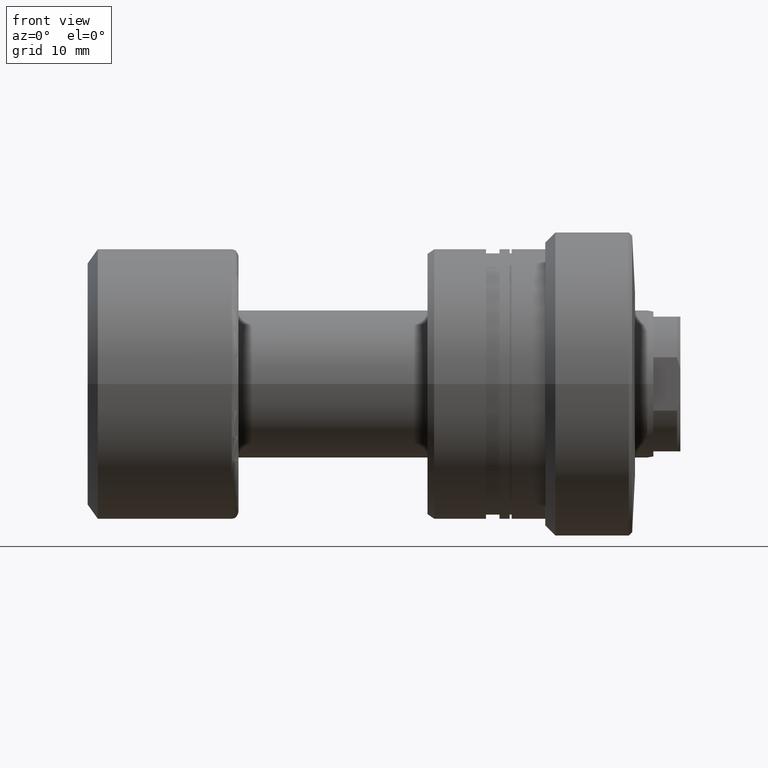
[diagram: clean part render]
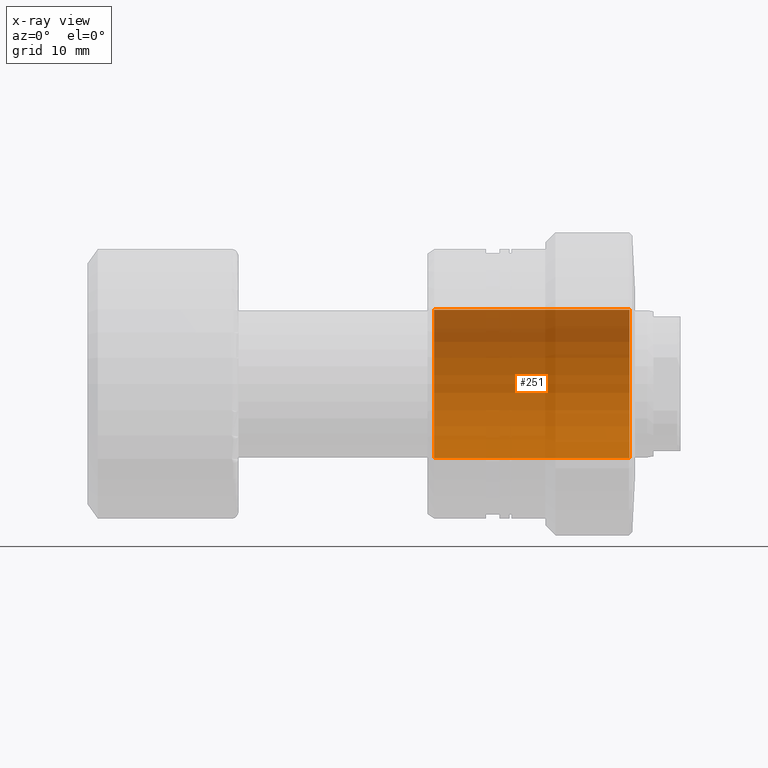
[diagram: x-ray — body ghosted, one internal face saturated and labeled with its STEP entity id]
A machine part, front view, then the same camera in x-ray: the body is ghosted and one INTERNAL B-rep face — a face not visible from any outside direction — is saturated and labeled: STEP entity #251.
In plain terms, the highlighted cylindrical surface (partial cylindrical patch) has radius 11 mm, axis along (1, 0, 0).
Its self-contained STEP definition (entity closure, byte-faithful):
#43 = ORIENTED_EDGE ( 'NONE', *, *, #934, .F. ) ;
#78 = DIRECTION ( 'NONE',  ( 0.000000000000000000, 0.000000000000000000, -1.000000000000000000 ) ) ;
#149 = VECTOR ( 'NONE', #687, 1000.000000000000000 ) ;
#251 = ADVANCED_FACE ( 'NONE', ( #2238 ), #1305, .F. ) ;
#270 = CARTESIAN_POINT ( 'NONE',  ( -1.500000000000000000, 0.000000000000000000, 0.000000000000000000 ) ) ;
#331 = CARTESIAN_POINT ( 'NONE',  ( -1.500000000000000000, 0.000000000000000000, -11.00000000000000000 ) ) ;
#368 = CARTESIAN_POINT ( 'NONE',  ( -62.61269837220812207, 1.347111479062088405E-15, 11.00000000000000000 ) ) ;
#381 = ORIENTED_EDGE ( 'NONE', *, *, #1438, .T. ) ;
#449 = VERTEX_POINT ( 'NONE', #1748 ) ;
#571 = EDGE_CURVE ( 'NONE', #1424, #612, #2145, .T. ) ;
#612 = VERTEX_POINT ( 'NONE', #331 ) ;
#687 = DIRECTION ( 'NONE',  ( 1.000000000000000000, -0.000000000000000000, -0.000000000000000000 ) ) ;
#714 = CARTESIAN_POINT ( 'NONE',  ( -30.50000000000002132, 0.000000000000000000, 0.000000000000000000 ) ) ;
#934 = EDGE_CURVE ( 'NONE', #2177, #449, #2054, .T. ) ;
#1028 = AXIS2_PLACEMENT_3D ( 'NONE', #714, #1253, #2024 ) ;
#1123 = DIRECTION ( 'NONE',  ( 1.000000000000000000, -0.000000000000000000, -0.000000000000000000 ) ) ;
#1226 = AXIS2_PLACEMENT_3D ( 'NONE', #270, #1970, #78 ) ;
#1253 = DIRECTION ( 'NONE',  ( -1.000000000000000000, 0.000000000000000000, 0.000000000000000000 ) ) ;
#1305 = CYLINDRICAL_SURFACE ( 'NONE', #1332, 11.00000000000000000 ) ;
#1309 = ORIENTED_EDGE ( 'NONE', *, *, #1696, .T. ) ;
#1332 = AXIS2_PLACEMENT_3D ( 'NONE', #1558, #1896, #1526 ) ;
#1336 = VECTOR ( 'NONE', #1123, 1000.000000000000000 ) ;
#1406 = CARTESIAN_POINT ( 'NONE',  ( -62.61269837220812207, 0.000000000000000000, -11.00000000000000000 ) ) ;
#1418 = CIRCLE ( 'NONE', #1028, 11.00000000000000000 ) ;
#1424 = VERTEX_POINT ( 'NONE', #1816 ) ;
#1438 = EDGE_CURVE ( 'NONE', #2177, #1424, #1418, .T. ) ;
#1526 = DIRECTION ( 'NONE',  ( 0.000000000000000000, 0.000000000000000000, -1.000000000000000000 ) ) ;
#1558 = CARTESIAN_POINT ( 'NONE',  ( -62.61269837220812207, 0.000000000000000000, 0.000000000000000000 ) ) ;
#1570 = CIRCLE ( 'NONE', #1226, 11.00000000000000000 ) ;
#1657 = ORIENTED_EDGE ( 'NONE', *, *, #571, .T. ) ;
#1696 = EDGE_CURVE ( 'NONE', #612, #449, #1570, .T. ) ;
#1748 = CARTESIAN_POINT ( 'NONE',  ( -1.500000000000000000, 1.347111479062088405E-15, 11.00000000000000000 ) ) ;
#1816 = CARTESIAN_POINT ( 'NONE',  ( -30.50000000000002132, 0.000000000000000000, -11.00000000000000000 ) ) ;
#1896 = DIRECTION ( 'NONE',  ( 1.000000000000000000, -0.000000000000000000, -0.000000000000000000 ) ) ;
#1970 = DIRECTION ( 'NONE',  ( 1.000000000000000000, 0.000000000000000000, 0.000000000000000000 ) ) ;
#2024 = DIRECTION ( 'NONE',  ( 0.000000000000000000, 0.000000000000000000, -1.000000000000000000 ) ) ;
#2054 = LINE ( 'NONE', #368, #1336 ) ;
#2145 = LINE ( 'NONE', #1406, #149 ) ;
#2177 = VERTEX_POINT ( 'NONE', #2341 ) ;
#2225 = EDGE_LOOP ( 'NONE', ( #43, #381, #1657, #1309 ) ) ;
#2238 = FACE_OUTER_BOUND ( 'NONE', #2225, .T. ) ;
#2341 = CARTESIAN_POINT ( 'NONE',  ( -30.50000000000002132, 1.347111479062088405E-15, 11.00000000000000000 ) ) ;